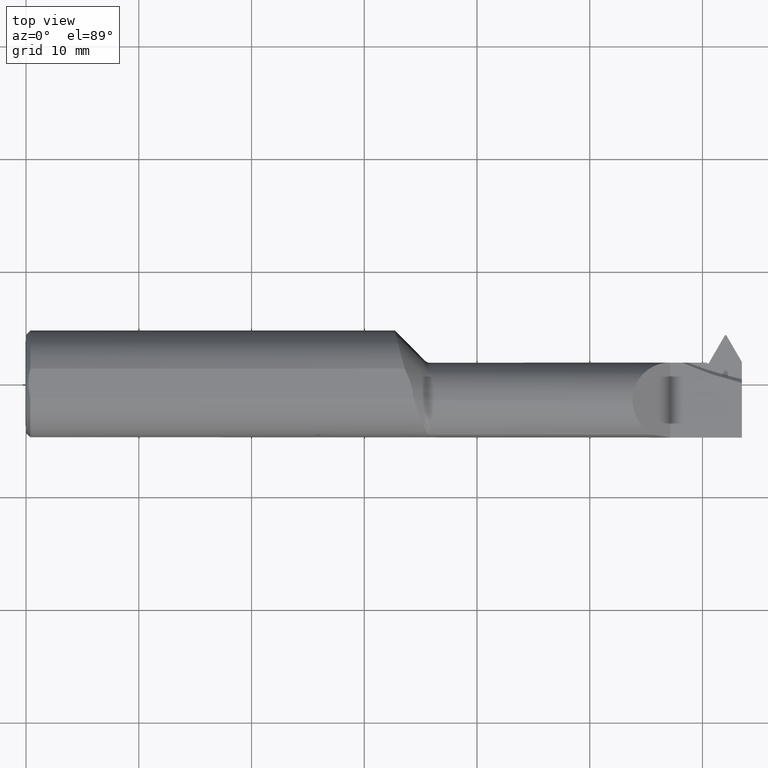
[diagram: clean part render]
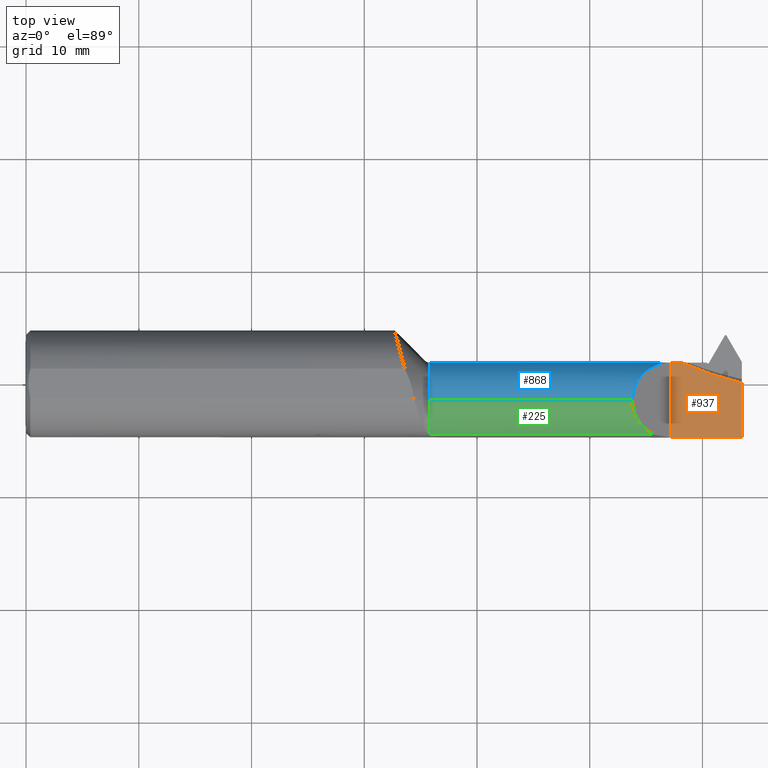
[diagram: same view with three faces highlighted in distinct colors, each labeled with its STEP entity id]
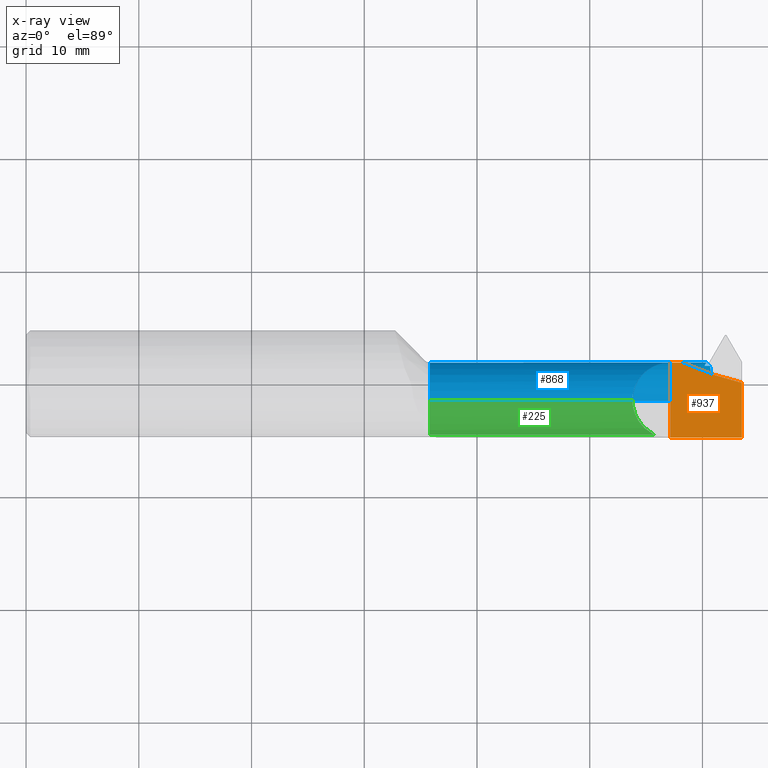
[diagram: x-ray of the same camera — body ghosted, the three highlighted faces saturated]
A machine part, top view with three faces highlighted in distinct colors.
The next image is the same camera in x-ray (body ghosted, the three faces saturated) — at least one of them is partly hidden behind the body in this view.
Their STEP definitions:

[orange] entity #937 — the highlighted planar face has unit normal (-0, 0, -1).
#2 = CARTESIAN_POINT ( 'NONE',  ( 2.290749082609245590, 0.07465000000000018843, -1.949782137912743772E-16 ) ) ;
#13 =( BOUNDED_CURVE ( )  B_SPLINE_CURVE ( 3, ( #611, #627, #367, #968 ),
 .UNSPECIFIED., .F., .T. ) 
 B_SPLINE_CURVE_WITH_KNOTS ( ( 4, 4 ),
 ( 5.860282646912140514, 6.057871501021973693 ),
 .UNSPECIFIED. ) 
 CURVE ( )  GEOMETRIC_REPRESENTATION_ITEM ( )  RATIONAL_B_SPLINE_CURVE ( ( 1.000000000000000000, 0.9967491990950059222, 0.9967491990950059222, 1.000000000000000000 ) ) 
 REPRESENTATION_ITEM ( '' )  );
#21 = CARTESIAN_POINT ( 'NONE',  ( 2.500000000000000000, 0.2999999999999999889, -6.429183357567480113E-17 ) ) ;
#33 = LINE ( 'NONE', #1036, #647 ) ;
#37 = CARTESIAN_POINT ( 'NONE',  ( 2.250000000000000000, -0.1873499999999999610, -6.429183357567478880E-17 ) ) ;
#50 = CARTESIAN_POINT ( 'NONE',  ( 2.250000000000000000, 0.2999999999999999889, -6.429183357567480113E-17 ) ) ;
#59 = DIRECTION ( 'NONE',  ( -0.000000000000000000, 0.000000000000000000, -1.000000000000000000 ) ) ;
#72 = DIRECTION ( 'NONE',  ( -1.000000000000000000, -0.000000000000000000, -0.000000000000000000 ) ) ;
#104 = VECTOR ( 'NONE', #841, 39.37007874015748143 ) ;
#109 = CARTESIAN_POINT ( 'NONE',  ( 2.250000000000000000, 0.07465000000000017455, -6.429183357567478880E-17 ) ) ;
#111 = VERTEX_POINT ( 'NONE', #349 ) ;
#139 = ORIENTED_EDGE ( 'NONE', *, *, #772, .F. ) ;
#147 = EDGE_CURVE ( 'NONE', #743, #689, #33, .T. ) ;
#176 = VECTOR ( 'NONE', #72, 39.37007874015748143 ) ;
#198 = LINE ( 'NONE', #21, #104 ) ;
#286 = DIRECTION ( 'NONE',  ( 1.000000000000000000, 0.000000000000000000, 0.000000000000000000 ) ) ;
#349 = CARTESIAN_POINT ( 'NONE',  ( 2.500000000000000000, 0.003904800381628308319, -6.429183357567480113E-17 ) ) ;
#367 = CARTESIAN_POINT ( 'NONE',  ( 2.428044615674395779, 0.02050208482654423264, -6.829619984160658046E-17 ) ) ;
#372 = EDGE_CURVE ( 'NONE', #955, #111, #198, .T. ) ;
#390 = ORIENTED_EDGE ( 'NONE', *, *, #372, .T. ) ;
#393 = EDGE_CURVE ( 'NONE', #897, #743, #877, .T. ) ;
#395 = CARTESIAN_POINT ( 'NONE',  ( 2.250000000000000000, 0.2999999999999999889, -6.429183357567480113E-17 ) ) ;
#401 = PLANE ( 'NONE',  #648 ) ;
#446 = DIRECTION ( 'NONE',  ( -0.000000000000000000, 1.000000000000000000, -0.000000000000000000 ) ) ;
#488 = LINE ( 'NONE', #650, #176 ) ;
#611 = CARTESIAN_POINT ( 'NONE',  ( 2.290749082609245590, 0.07465000000000018843, -1.949782137912743772E-16 ) ) ;
#627 = CARTESIAN_POINT ( 'NONE',  ( 2.358066826015524864, 0.04416072756990922776, -6.829619984160658046E-17 ) ) ;
#647 = VECTOR ( 'NONE', #286, 39.37007874015748143 ) ;
#648 = AXIS2_PLACEMENT_3D ( 'NONE', #395, #59, #735 ) ;
#650 = CARTESIAN_POINT ( 'NONE',  ( 2.500000000000000000, -0.1873499999999999888, -6.429183357567480113E-17 ) ) ;
#655 = CARTESIAN_POINT ( 'NONE',  ( 2.500000000000000000, -0.1873499999999998222, -6.429183357567480113E-17 ) ) ;
#659 = ORIENTED_EDGE ( 'NONE', *, *, #147, .F. ) ;
#666 = ORIENTED_EDGE ( 'NONE', *, *, #1016, .F. ) ;
#683 = VECTOR ( 'NONE', #446, 39.37007874015748143 ) ;
#689 = VERTEX_POINT ( 'NONE', #2 ) ;
#735 = DIRECTION ( 'NONE',  ( -1.000000000000000000, 0.000000000000000000, 0.000000000000000000 ) ) ;
#743 = VERTEX_POINT ( 'NONE', #109 ) ;
#772 = EDGE_CURVE ( 'NONE', #689, #111, #13, .T. ) ;
#841 = DIRECTION ( 'NONE',  ( -0.000000000000000000, 1.000000000000000000, -0.000000000000000000 ) ) ;
#877 = LINE ( 'NONE', #50, #683 ) ;
#897 = VERTEX_POINT ( 'NONE', #37 ) ;
#937 = ADVANCED_FACE ( 'NONE', ( #983 ), #401, .F. ) ;
#947 = ORIENTED_EDGE ( 'NONE', *, *, #393, .F. ) ;
#955 = VERTEX_POINT ( 'NONE', #655 ) ;
#968 = CARTESIAN_POINT ( 'NONE',  ( 2.500000000000000000, 0.003904800381628308319, -6.429183357567480113E-17 ) ) ;
#977 = EDGE_LOOP ( 'NONE', ( #139, #659, #947, #666, #390 ) ) ;
#983 = FACE_OUTER_BOUND ( 'NONE', #977, .T. ) ;
#1016 = EDGE_CURVE ( 'NONE', #955, #897, #488, .T. ) ;
#1036 = CARTESIAN_POINT ( 'NONE',  ( 1.399999999999999911, 0.07465000000000018843, -6.429183357567480113E-17 ) ) ;

[blue] entity #868 — the highlighted cylindrical surface (partial cylindrical patch) has radius 3.3782 mm, axis along (-1, -0, -0).
#2 = CARTESIAN_POINT ( 'NONE',  ( 2.290749082609245590, 0.07465000000000018843, -1.949782137912743772E-16 ) ) ;
#25 =( BOUNDED_CURVE ( )  B_SPLINE_CURVE ( 3, ( #465, #223, #460, #45 ),
 .UNSPECIFIED., .F., .T. ) 
 B_SPLINE_CURVE_WITH_KNOTS ( ( 4, 4 ),
 ( 1.167374435702474011, 1.507429361145364854 ),
 .UNSPECIFIED. ) 
 CURVE ( )  GEOMETRIC_REPRESENTATION_ITEM ( )  RATIONAL_B_SPLINE_CURVE ( ( 1.000000000000000000, 0.9903867468867805224, 0.9903867468867805224, 1.000000000000000000 ) ) 
 REPRESENTATION_ITEM ( '' )  );
#33 = LINE ( 'NONE', #1036, #647 ) ;
#45 = CARTESIAN_POINT ( 'NONE',  ( 2.377439043531619944, 0.07438306707720576672, -0.008422167433508244427 ) ) ;
#55 = DIRECTION ( 'NONE',  ( -1.000000000000000000, -0.000000000000000000, -0.000000000000000000 ) ) ;
#73 = LINE ( 'NONE', #489, #120 ) ;
#80 = EDGE_CURVE ( 'NONE', #108, #837, #549, .T. ) ;
#88 = AXIS2_PLACEMENT_3D ( 'NONE', #273, #112, #551 ) ;
#108 = VERTEX_POINT ( 'NONE', #265 ) ;
#109 = CARTESIAN_POINT ( 'NONE',  ( 2.250000000000000000, 0.07465000000000017455, -6.429183357567478880E-17 ) ) ;
#112 = DIRECTION ( 'NONE',  ( -1.000000000000000000, -0.000000000000000000, -0.000000000000000000 ) ) ;
#115 = ORIENTED_EDGE ( 'NONE', *, *, #358, .F. ) ;
#118 = EDGE_CURVE ( 'NONE', #171, #738, #25, .T. ) ;
#120 = VECTOR ( 'NONE', #55, 39.37007874015748143 ) ;
#138 =( BOUNDED_CURVE ( )  B_SPLINE_CURVE ( 3, ( #1072, #313, #653, #906 ),
 .UNSPECIFIED., .F., .F. ) 
 B_SPLINE_CURVE_WITH_KNOTS ( ( 4, 4 ),
 ( 0.000000000000000000, 1.565909089294454715 ),
 .UNSPECIFIED. ) 
 CURVE ( )  GEOMETRIC_REPRESENTATION_ITEM ( )  RATIONAL_B_SPLINE_CURVE ( ( 1.000000000000000000, 0.8058883784621434510, 0.8058883784621434510, 1.000000000000000000 ) ) 
 REPRESENTATION_ITEM ( '' )  );
#141 = AXIS2_PLACEMENT_3D ( 'NONE', #228, #162, #898 ) ;
#147 = EDGE_CURVE ( 'NONE', #743, #689, #33, .T. ) ;
#162 = DIRECTION ( 'NONE',  ( -1.000000000000000000, -0.000000000000000000, -0.000000000000000000 ) ) ;
#170 = ORIENTED_EDGE ( 'NONE', *, *, #1001, .F. ) ;
#171 = VERTEX_POINT ( 'NONE', #658 ) ;
#220 = ORIENTED_EDGE ( 'NONE', *, *, #1031, .T. ) ;
#221 = DIRECTION ( 'NONE',  ( -1.000000000000000000, -0.000000000000000000, -0.000000000000000000 ) ) ;
#223 = CARTESIAN_POINT ( 'NONE',  ( 2.371905451040526192, 0.06992012348188784976, -0.03827876075488841068 ) ) ;
#228 = CARTESIAN_POINT ( 'NONE',  ( 2.250000000000000000, -0.05834999999999981868, 0.000000000000000000 ) ) ;
#251 = CARTESIAN_POINT ( 'NONE',  ( 1.410355339059326862, -0.05834999999999980480, -0.1330000000000000071 ) ) ;
#265 = CARTESIAN_POINT ( 'NONE',  ( 2.117649999999998922, -0.05834999999999981868, 0.1330000000000000071 ) ) ;
#270 = EDGE_CURVE ( 'NONE', #108, #752, #138, .T. ) ;
#273 = CARTESIAN_POINT ( 'NONE',  ( 1.399999999999999911, -0.05834999999999981868, 0.000000000000000000 ) ) ;
#275 = CARTESIAN_POINT ( 'NONE',  ( 2.388308789459395953, 0.06397316657360097025, -0.05221152094516228609 ) ) ;
#286 = DIRECTION ( 'NONE',  ( 1.000000000000000000, 0.000000000000000000, 0.000000000000000000 ) ) ;
#313 = CARTESIAN_POINT ( 'NONE',  ( 2.117649999999999366, 0.01925802714158484155, 0.1330000000000000349 ) ) ;
#331 = VERTEX_POINT ( 'NONE', #780 ) ;
#348 = VECTOR ( 'NONE', #221, 39.37007874015748143 ) ;
#358 = EDGE_CURVE ( 'NONE', #754, #496, #954, .T. ) ;
#373 = ORIENTED_EDGE ( 'NONE', *, *, #80, .F. ) ;
#383 = CIRCLE ( 'NONE', #1066, 0.1330000000000000071 ) ;
#385 = LINE ( 'NONE', #978, #348 ) ;
#417 = CARTESIAN_POINT ( 'NONE',  ( 1.399999999999999911, 0.07438306707720575284, -0.008422167433508244427 ) ) ;
#436 = CARTESIAN_POINT ( 'NONE',  ( 2.250000000000000000, 0.07464841164465103873, 0.0006500000000000630707 ) ) ;
#444 = EDGE_LOOP ( 'NONE', ( #115, #793, #1038, #373, #918, #817, #854, #220, #499, #813, #170 ) ) ;
#460 = CARTESIAN_POINT ( 'NONE',  ( 2.374637002455004975, 0.07342377177427721058, -0.02354062818553168124 ) ) ;
#465 = CARTESIAN_POINT ( 'NONE',  ( 2.369323166573600759, 0.06397316657360098413, -0.05221152094516220282 ) ) ;
#489 = CARTESIAN_POINT ( 'NONE',  ( 1.399999999999999911, -0.05834999999999980480, -0.1330000000000000071 ) ) ;
#496 = VERTEX_POINT ( 'NONE', #800 ) ;
#499 = ORIENTED_EDGE ( 'NONE', *, *, #657, .T. ) ;
#518 = CARTESIAN_POINT ( 'NONE',  ( 2.377439043531619944, 0.07438306707720576672, -0.008422167433508244427 ) ) ;
#529 = FACE_OUTER_BOUND ( 'NONE', #444, .T. ) ;
#539 = CARTESIAN_POINT ( 'NONE',  ( 1.410355339059326862, -0.05834999999999981868, 0.1330000000000000071 ) ) ;
#549 = LINE ( 'NONE', #604, #750 ) ;
#551 = DIRECTION ( 'NONE',  ( 0.000000000000000000, 0.000000000000000000, 1.000000000000000000 ) ) ;
#568 = CARTESIAN_POINT ( 'NONE',  ( 2.311174482544572584, 0.07438306707720547528, -0.008422167433508362389 ) ) ;
#599 = EDGE_CURVE ( 'NONE', #754, #1069, #73, .T. ) ;
#604 = CARTESIAN_POINT ( 'NONE',  ( 1.399999999999999911, -0.05834999999999981868, 0.1330000000000000071 ) ) ;
#607 = LINE ( 'NONE', #417, #805 ) ;
#647 = VECTOR ( 'NONE', #286, 39.37007874015748143 ) ;
#653 = CARTESIAN_POINT ( 'NONE',  ( 2.172392899693941004, 0.07426912429395904347, 0.07825710030605810552 ) ) ;
#657 = EDGE_CURVE ( 'NONE', #331, #738, #607, .T. ) ;
#658 = CARTESIAN_POINT ( 'NONE',  ( 2.369323166573600759, 0.06397316657360098413, -0.05221152094516220282 ) ) ;
#660 = CARTESIAN_POINT ( 'NONE',  ( 2.297495481248967852, 0.07465000000000020230, -0.002924200901581692179 ) ) ;
#687 = DIRECTION ( 'NONE',  ( -1.000000000000000000, -0.000000000000000000, -0.000000000000000000 ) ) ;
#689 = VERTEX_POINT ( 'NONE', #2 ) ;
#691 = CARTESIAN_POINT ( 'NONE',  ( 2.398797270268487658, -0.05834999999999983950, -0.1329999999999999793 ) ) ;
#694 = CARTESIAN_POINT ( 'NONE',  ( 2.393835302517310915, 0.04241050335030133872, -0.1027293606381376595 ) ) ;
#719 = DIRECTION ( 'NONE',  ( 0.000000000000000000, 0.000000000000000000, 1.000000000000000000 ) ) ;
#738 = VERTEX_POINT ( 'NONE', #518 ) ;
#739 = CARTESIAN_POINT ( 'NONE',  ( 2.290749082609245590, 0.07465000000000018843, -1.949782137912743772E-16 ) ) ;
#743 = VERTEX_POINT ( 'NONE', #109 ) ;
#750 = VECTOR ( 'NONE', #687, 39.37007874015748143 ) ;
#752 = VERTEX_POINT ( 'NONE', #436 ) ;
#754 = VERTEX_POINT ( 'NONE', #774 ) ;
#774 = CARTESIAN_POINT ( 'NONE',  ( 2.398797270268487658, -0.05834999999999983950, -0.1329999999999999793 ) ) ;
#780 = CARTESIAN_POINT ( 'NONE',  ( 2.311174482544572584, 0.07438306707720547528, -0.008422167433508362389 ) ) ;
#793 = ORIENTED_EDGE ( 'NONE', *, *, #599, .T. ) ;
#799 = CYLINDRICAL_SURFACE ( 'NONE', #88, 0.1330000000000000071 ) ;
#800 = CARTESIAN_POINT ( 'NONE',  ( 2.388308789459395953, 0.06397316657360097025, -0.05221152094516228609 ) ) ;
#805 = VECTOR ( 'NONE', #1020, 39.37007874015748143 ) ;
#808 = CARTESIAN_POINT ( 'NONE',  ( 1.410355339059326862, -0.05834999999999981868, 0.000000000000000000 ) ) ;
#813 = ORIENTED_EDGE ( 'NONE', *, *, #118, .F. ) ;
#814 = CARTESIAN_POINT ( 'NONE',  ( 2.304306199931663190, 0.07455403495019821691, -0.005727719676073589512 ) ) ;
#817 = ORIENTED_EDGE ( 'NONE', *, *, #1040, .T. ) ;
#837 = VERTEX_POINT ( 'NONE', #539 ) ;
#852 = CARTESIAN_POINT ( 'NONE',  ( 2.397765231929774643, -0.003422770208879028549, -0.1330000000000000626 ) ) ;
#854 = ORIENTED_EDGE ( 'NONE', *, *, #147, .T. ) ;
#868 = ADVANCED_FACE ( 'NONE', ( #529 ), #799, .T. ) ;
#898 = DIRECTION ( 'NONE',  ( 0.000000000000000000, 0.000000000000000000, 1.000000000000000000 ) ) ;
#906 = CARTESIAN_POINT ( 'NONE',  ( 2.250000000000000000, 0.07464841164465103873, 0.0006500000000000630707 ) ) ;
#918 = ORIENTED_EDGE ( 'NONE', *, *, #270, .T. ) ;
#919 = EDGE_CURVE ( 'NONE', #1069, #837, #383, .T. ) ;
#954 =( BOUNDED_CURVE ( )  B_SPLINE_CURVE ( 3, ( #691, #852, #694, #275 ),
 .UNSPECIFIED., .F., .F. ) 
 B_SPLINE_CURVE_WITH_KNOTS ( ( 4, 4 ),
 ( 3.324852225049197862, 4.492226660751670764 ),
 .UNSPECIFIED. ) 
 CURVE ( )  GEOMETRIC_REPRESENTATION_ITEM ( )  RATIONAL_B_SPLINE_CURVE ( ( 1.000000000000000000, 0.8896241898414404270, 0.8896241898414404270, 1.000000000000000000 ) ) 
 REPRESENTATION_ITEM ( '' )  );
#978 = CARTESIAN_POINT ( 'NONE',  ( 1.399999999999999911, 0.06397316657360095637, -0.05221152094516229303 ) ) ;
#992 = DIRECTION ( 'NONE',  ( 1.000000000000000000, 0.000000000000000000, 0.000000000000000000 ) ) ;
#996 = B_SPLINE_CURVE_WITH_KNOTS ( 'NONE', 3,
 ( #739, #660, #814, #568 ),
 .UNSPECIFIED., .F., .F.,
 ( 4, 4 ),
 ( 0.01680130966741247289, 0.01736071663581756699 ),
 .UNSPECIFIED. ) ;
#1001 = EDGE_CURVE ( 'NONE', #496, #171, #385, .T. ) ;
#1020 = DIRECTION ( 'NONE',  ( 1.000000000000000000, 0.000000000000000000, 0.000000000000000000 ) ) ;
#1031 = EDGE_CURVE ( 'NONE', #689, #331, #996, .T. ) ;
#1036 = CARTESIAN_POINT ( 'NONE',  ( 1.399999999999999911, 0.07465000000000018843, -6.429183357567480113E-17 ) ) ;
#1038 = ORIENTED_EDGE ( 'NONE', *, *, #919, .T. ) ;
#1040 = EDGE_CURVE ( 'NONE', #752, #743, #1085, .T. ) ;
#1066 = AXIS2_PLACEMENT_3D ( 'NONE', #808, #992, #719 ) ;
#1069 = VERTEX_POINT ( 'NONE', #251 ) ;
#1072 = CARTESIAN_POINT ( 'NONE',  ( 2.117649999999998922, -0.05834999999999981868, 0.1330000000000000071 ) ) ;
#1085 = CIRCLE ( 'NONE', #141, 0.1330000000000000071 ) ;

[green] entity #225 — the highlighted cylindrical surface (partial cylindrical patch) has radius 3.3782 mm, axis along (-1, -0, -0).
#28 = EDGE_CURVE ( 'NONE', #179, #42, #1054, .T. ) ;
#42 = VERTEX_POINT ( 'NONE', #381 ) ;
#80 = EDGE_CURVE ( 'NONE', #108, #837, #549, .T. ) ;
#108 = VERTEX_POINT ( 'NONE', #265 ) ;
#160 = EDGE_CURVE ( 'NONE', #42, #108, #844, .T. ) ;
#164 = DIRECTION ( 'NONE',  ( -1.000000000000000000, -0.000000000000000000, -0.000000000000000000 ) ) ;
#179 = VERTEX_POINT ( 'NONE', #990 ) ;
#224 = AXIS2_PLACEMENT_3D ( 'NONE', #1076, #164, #981 ) ;
#225 = ADVANCED_FACE ( 'NONE', ( #570 ), #392, .T. ) ;
#261 = ORIENTED_EDGE ( 'NONE', *, *, #80, .T. ) ;
#265 = CARTESIAN_POINT ( 'NONE',  ( 2.117649999999998922, -0.05834999999999981868, 0.1330000000000000071 ) ) ;
#272 = EDGE_LOOP ( 'NONE', ( #929, #261, #870, #394 ) ) ;
#291 = VECTOR ( 'NONE', #878, 39.37007874015748143 ) ;
#295 = CARTESIAN_POINT ( 'NONE',  ( 1.410355339059326862, -0.05834999999999981868, 0.000000000000000000 ) ) ;
#381 = CARTESIAN_POINT ( 'NONE',  ( 2.193341453216400616, -0.1783697086546704724, 0.05730854678359917354 ) ) ;
#389 = CARTESIAN_POINT ( 'NONE',  ( 1.889999999999999680, -0.1783697086546703892, 0.05730854678359931925 ) ) ;
#392 = CYLINDRICAL_SURFACE ( 'NONE', #224, 0.1330000000000000071 ) ;
#394 = ORIENTED_EDGE ( 'NONE', *, *, #28, .T. ) ;
#539 = CARTESIAN_POINT ( 'NONE',  ( 1.410355339059326862, -0.05834999999999981868, 0.1330000000000000071 ) ) ;
#549 = LINE ( 'NONE', #604, #750 ) ;
#566 = CARTESIAN_POINT ( 'NONE',  ( 2.117649999999998922, -0.05834999999999981868, 0.1330000000000000071 ) ) ;
#570 = FACE_OUTER_BOUND ( 'NONE', #272, .T. ) ;
#604 = CARTESIAN_POINT ( 'NONE',  ( 1.399999999999999911, -0.05834999999999981868, 0.1330000000000000071 ) ) ;
#646 = CARTESIAN_POINT ( 'NONE',  ( 2.193341453216400616, -0.1783697086546704724, 0.05730854678359917354 ) ) ;
#687 = DIRECTION ( 'NONE',  ( -1.000000000000000000, -0.000000000000000000, -0.000000000000000000 ) ) ;
#712 = DIRECTION ( 'NONE',  ( 0.000000000000000000, 0.000000000000000000, 1.000000000000000000 ) ) ;
#731 = CARTESIAN_POINT ( 'NONE',  ( 2.145770520002824977, -0.1556549305389051951, 0.1048794799971742853 ) ) ;
#750 = VECTOR ( 'NONE', #687, 39.37007874015748143 ) ;
#779 = EDGE_CURVE ( 'NONE', #837, #179, #1026, .T. ) ;
#837 = VERTEX_POINT ( 'NONE', #539 ) ;
#844 =( BOUNDED_CURVE ( )  B_SPLINE_CURVE ( 3, ( #646, #731, #1084, #566 ),
 .UNSPECIFIED., .F., .F. ) 
 B_SPLINE_CURVE_WITH_KNOTS ( ( 4, 4 ),
 ( 5.157869252308473484, 6.283185307179586232 ),
 .UNSPECIFIED. ) 
 CURVE ( )  GEOMETRIC_REPRESENTATION_ITEM ( )  RATIONAL_B_SPLINE_CURVE ( ( 1.000000000000000000, 0.8972268081433650844, 0.8972268081433650844, 1.000000000000000000 ) ) 
 REPRESENTATION_ITEM ( '' )  );
#870 = ORIENTED_EDGE ( 'NONE', *, *, #779, .T. ) ;
#878 = DIRECTION ( 'NONE',  ( 1.000000000000000000, 0.000000000000000000, 0.000000000000000000 ) ) ;
#890 = AXIS2_PLACEMENT_3D ( 'NONE', #295, #1039, #712 ) ;
#929 = ORIENTED_EDGE ( 'NONE', *, *, #160, .T. ) ;
#981 = DIRECTION ( 'NONE',  ( 0.000000000000000000, 0.000000000000000000, 1.000000000000000000 ) ) ;
#990 = CARTESIAN_POINT ( 'NONE',  ( 1.410355339059326862, -0.1783697086546703892, 0.05730854678359931925 ) ) ;
#1026 = CIRCLE ( 'NONE', #890, 0.1330000000000000071 ) ;
#1039 = DIRECTION ( 'NONE',  ( 1.000000000000000000, 0.000000000000000000, 0.000000000000000000 ) ) ;
#1054 = LINE ( 'NONE', #389, #291 ) ;
#1076 = CARTESIAN_POINT ( 'NONE',  ( 1.399999999999999911, -0.05834999999999981868, 0.000000000000000000 ) ) ;
#1084 = CARTESIAN_POINT ( 'NONE',  ( 2.117649999999998922, -0.1110657930003794841, 0.1330000000000000071 ) ) ;